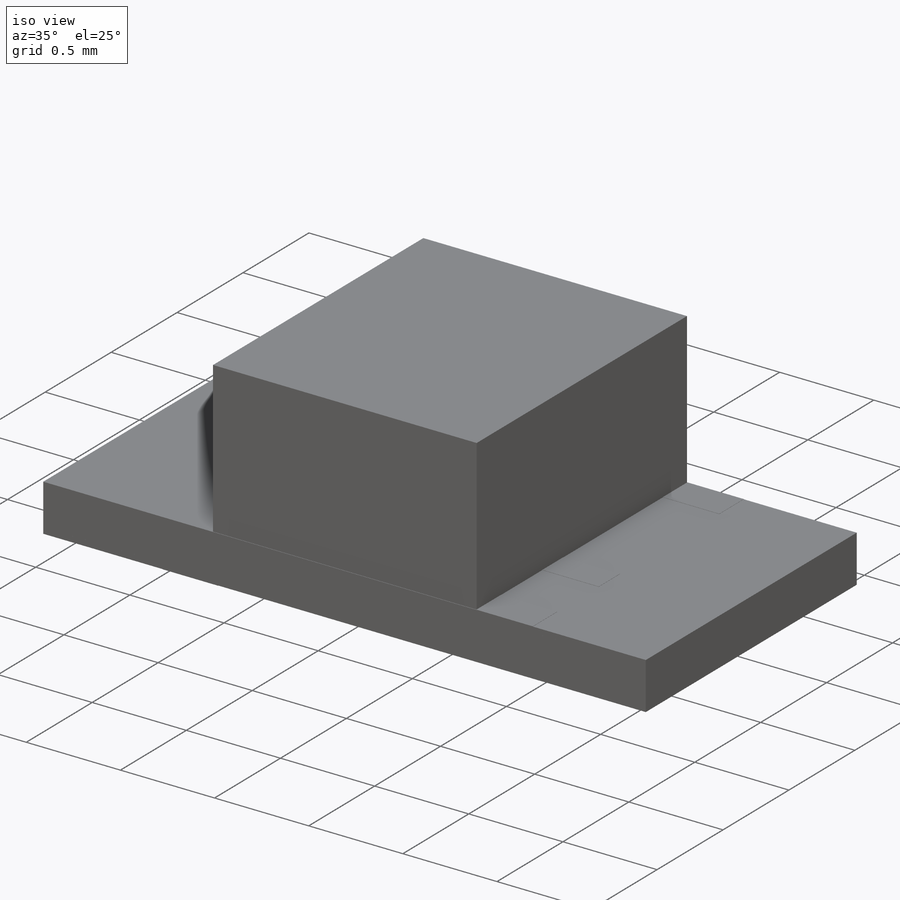
[diagram: iso view]
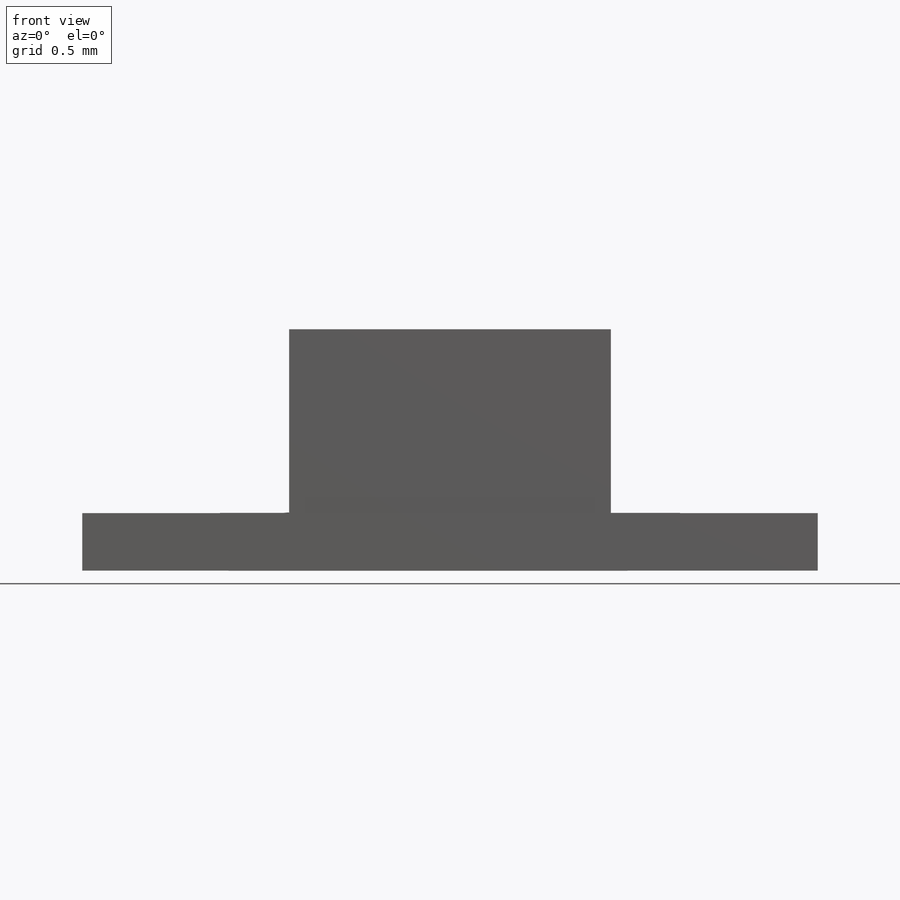
[diagram: front view]
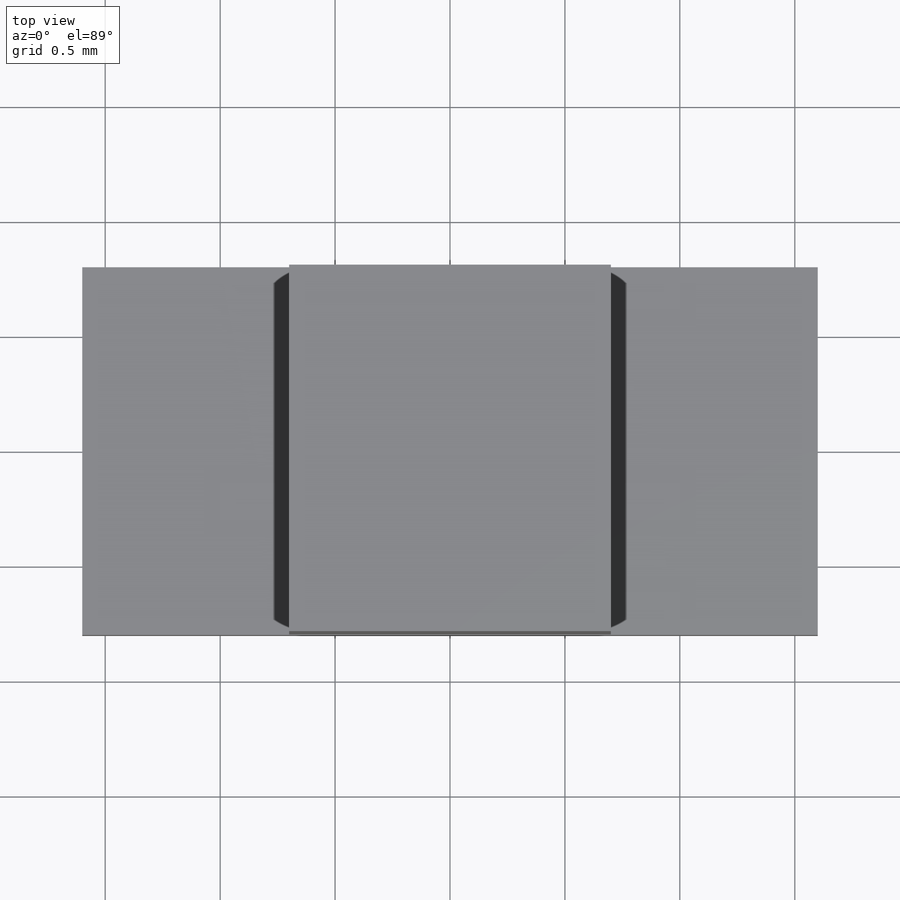
[diagram: top view]
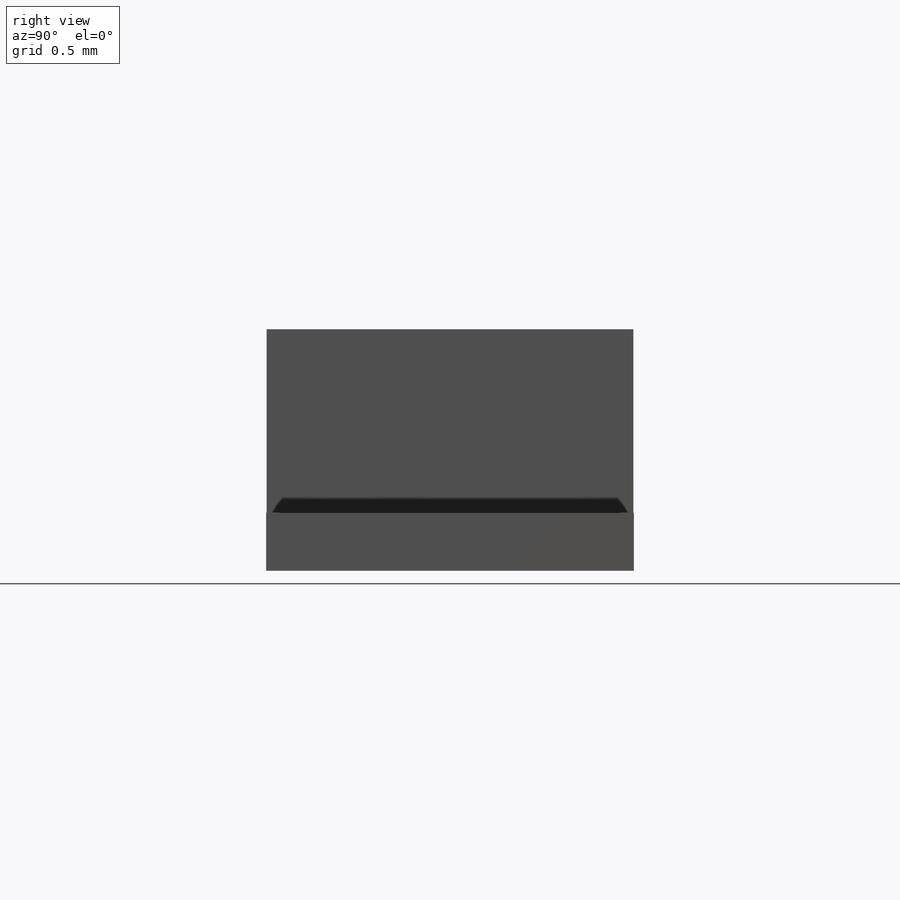
[diagram: right view]
SOLIDWORKS PART (.sldprt)
format: sldprt  version: not decoded by parser v0  size: 502,784 bytes
history: native  units: mm
features: sketch x6, extrude x6, material x1 (+12 scaffold rows collapsed)
feature tree (25):
  scaffold x12  (default folders/planes/origin — collapsed)
  material  "Material <not specified>"
  sketch  "Sketch1"  dims[D1=0.25mm D2=3.2mm D3=1.4mm D4=1.05mm D5=0.1mm D6=0.15mm D7=0.6mm D8=0.5mm D9=0.03mm D10=0.03mm D11=0.03mm]
  extrude  "Extrude1"  Depth=1.6mm
  sketch  "Sketch2"  dims[D1=0.5mm]
  extrude  "Extrude5"  [1 undecoded]
  sketch  "Sketch1<5>"  dims[D1=1.595mm]
  extrude  "Extrude6"  Depth=0.01mm
  extrude  "Extrude7"  [1 undecoded]
  sketch  "Sketch1<6>"  dims[D1=1.6mm]
  sketch  "Sketch5"  dims[D1=1.6mm]
  extrude  "Extrude8"  Depth=0.01mm
  extrude  "Extrude9"  [1 undecoded]
  sketch  "Sketch5<3>"  dims[D1=0.01mm D2=0.001mm]
decode coverage: 9 of 12 modeling features carry decoded parameters
note: 3 parameter values undecoded
summary: no parameter record found for 3 features
note: suppression state not decoded; provenance and decode notes live in map.json
